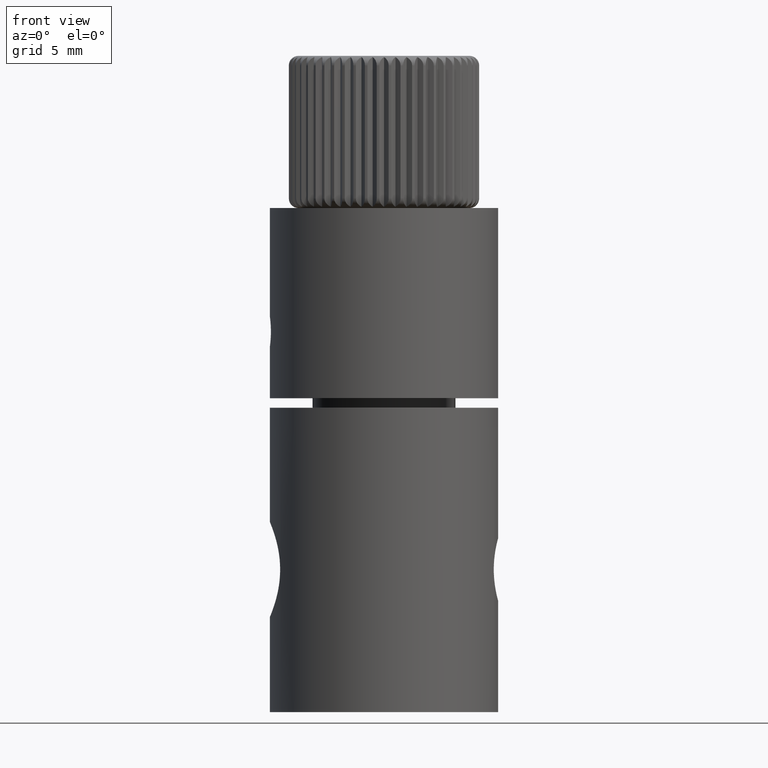
[diagram: clean part render]
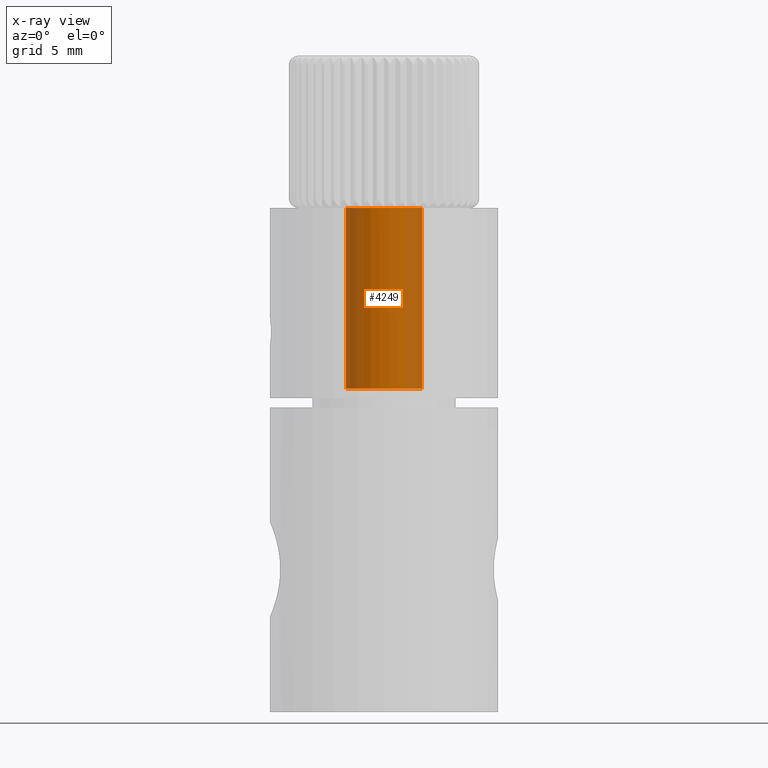
[diagram: x-ray — body ghosted, one internal face saturated and labeled with its STEP entity id]
A machine part, front view, then the same camera in x-ray: the body is ghosted and one INTERNAL B-rep face — a face not visible from any outside direction — is saturated and labeled: STEP entity #4249.
In plain terms, the highlighted cylindrical surface (partial cylindrical patch) has radius 2 mm, axis along (-0, 0, -1).
Its self-contained STEP definition (entity closure, byte-faithful):
#248 = CARTESIAN_POINT ( 'NONE',  ( -2.000000000000008900, -5.555451931815719800E-016, -22.46273327591177700 ) ) ;
#789 = DIRECTION ( 'NONE',  ( -4.336808689942016800E-019, 1.131530321521338700E-033, -1.000000000000000000 ) ) ;
#854 = ORIENTED_EDGE ( 'NONE', *, *, #2435, .T. ) ;
#1118 = LINE ( 'NONE', #3566, #5395 ) ;
#1346 = EDGE_LOOP ( 'NONE', ( #6614, #854, #6977, #8669 ) ) ;
#1611 = CIRCLE ( 'NONE', #7648, 2.000000000000008900 ) ;
#2148 = AXIS2_PLACEMENT_3D ( 'NONE', #7686, #8568, #10287 ) ;
#2204 = EDGE_CURVE ( 'NONE', #10739, #5612, #1611, .T. ) ;
#2435 = EDGE_CURVE ( 'NONE', #2517, #9725, #7194, .T. ) ;
#2517 = VERTEX_POINT ( 'NONE', #8662 ) ;
#2551 = CYLINDRICAL_SURFACE ( 'NONE', #2148, 2.000000000000008900 ) ;
#2767 = DIRECTION ( 'NONE',  ( -4.336808689942016800E-019, 1.131530321521338700E-033, -1.000000000000000000 ) ) ;
#2955 = EDGE_CURVE ( 'NONE', #9725, #10739, #8700, .T. ) ;
#3449 = EDGE_CURVE ( 'NONE', #2517, #5612, #1118, .T. ) ;
#3554 = CARTESIAN_POINT ( 'NONE',  ( 2.000000000000000900, 8.004745530110414900E-016, 16.99999999999995400 ) ) ;
#3566 = CARTESIAN_POINT ( 'NONE',  ( 2.000000000000008900, 8.004745530110446400E-016, -22.46273327591177700 ) ) ;
#3931 = CARTESIAN_POINT ( 'NONE',  ( -4.119968255444933800E-018, 1.074953805445277400E-032, 16.99999999999995400 ) ) ;
#4249 = ADVANCED_FACE ( 'NONE', ( #9290 ), #2551, .T. ) ;
#4562 = CARTESIAN_POINT ( 'NONE',  ( -2.000000000000000900, -5.555451931815699100E-016, 16.99999999999995400 ) ) ;
#5395 = VECTOR ( 'NONE', #2767, 1000.000000000000000 ) ;
#5612 = VERTEX_POINT ( 'NONE', #3554 ) ;
#6462 = VECTOR ( 'NONE', #7037, 1000.000000000000000 ) ;
#6543 = DIRECTION ( 'NONE',  ( 4.336808689942016800E-019, -1.131530321521338700E-033, 1.000000000000000000 ) ) ;
#6614 = ORIENTED_EDGE ( 'NONE', *, *, #3449, .F. ) ;
#6977 = ORIENTED_EDGE ( 'NONE', *, *, #2955, .T. ) ;
#7037 = DIRECTION ( 'NONE',  ( -4.336808689942016800E-019, 1.131530321521338700E-033, -1.000000000000000000 ) ) ;
#7194 = CIRCLE ( 'NONE', #8815, 2.000000000000009800 ) ;
#7528 = CARTESIAN_POINT ( 'NONE',  ( -2.000000000000009800, -5.555451931815722700E-016, 26.49999999999999600 ) ) ;
#7648 = AXIS2_PLACEMENT_3D ( 'NONE', #3931, #6543, #10782 ) ;
#7686 = CARTESIAN_POINT ( 'NONE',  ( -2.123420071542873200E-017, 5.540281732625599100E-032, -22.46273327591177700 ) ) ;
#8559 = CARTESIAN_POINT ( 'NONE',  ( 0.0000000000000000000, 0.0000000000000000000, 26.49999999999999600 ) ) ;
#8568 = DIRECTION ( 'NONE',  ( -4.336808689942016800E-019, 1.131530321521338700E-033, -1.000000000000000000 ) ) ;
#8662 = CARTESIAN_POINT ( 'NONE',  ( 2.000000000000001800, 8.004745530110417800E-016, 26.49999999999999600 ) ) ;
#8669 = ORIENTED_EDGE ( 'NONE', *, *, #2204, .T. ) ;
#8700 = LINE ( 'NONE', #248, #6462 ) ;
#8815 = AXIS2_PLACEMENT_3D ( 'NONE', #8559, #789, #10276 ) ;
#9290 = FACE_OUTER_BOUND ( 'NONE', #1346, .T. ) ;
#9725 = VERTEX_POINT ( 'NONE', #7528 ) ;
#10276 = DIRECTION ( 'NONE',  ( -1.000000000000000000, -2.777725965907847600E-016, 0.0000000000000000000 ) ) ;
#10287 = DIRECTION ( 'NONE',  ( -1.000000000000000000, -2.777725965907848100E-016, 0.0000000000000000000 ) ) ;
#10739 = VERTEX_POINT ( 'NONE', #4562 ) ;
#10782 = DIRECTION ( 'NONE',  ( 1.000000000000000000, 2.777725965907848100E-016, 0.0000000000000000000 ) ) ;